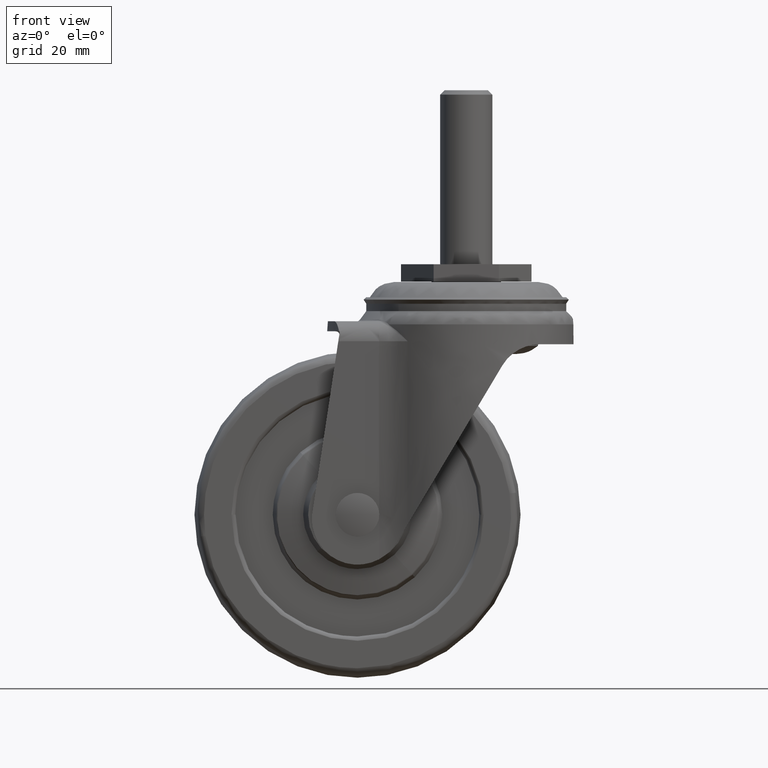
[diagram: clean part render]
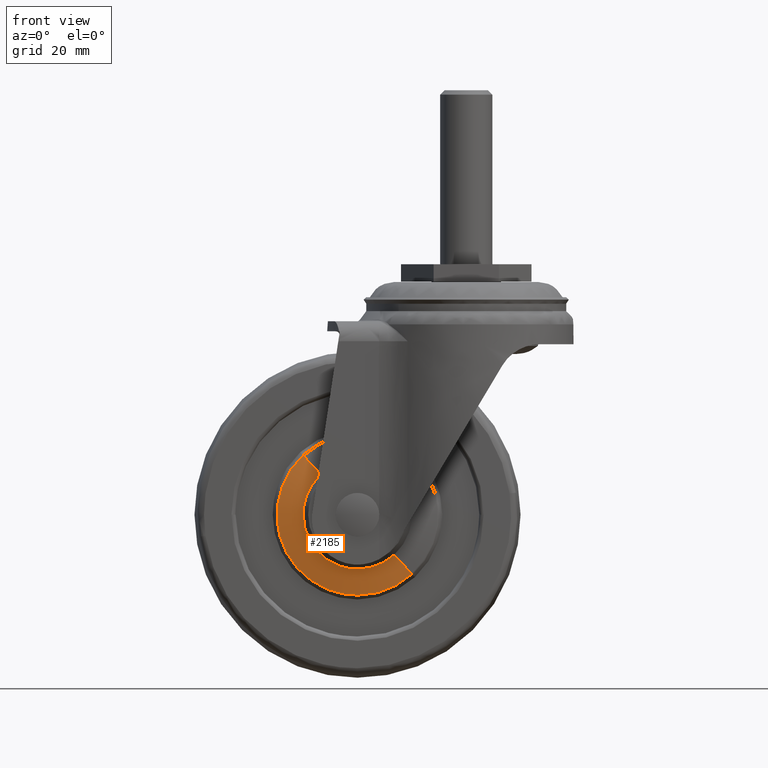
[diagram: same view with one face highlighted and labeled with its STEP entity id]
A machine part, front view. The second image highlights one B-rep face of the part: STEP entity #2185.
In plain terms, the highlighted face is a freeform B-spline surface patch.
Its self-contained STEP definition (entity closure, byte-faithful):
#1955=CARTESIAN_POINT('',(-42.868732202514778,-11.030438807840520,-54.328010344609062));
#1956=VERTEX_POINT('',#1955);
#1957=CARTESIAN_POINT('',(-25.0,-11.030438812514880,-68.009465045403132));
#1958=VERTEX_POINT('',#1957);
#1959=CARTESIAN_POINT('',(-42.868732202514778,-11.030438807840520,-54.328010344609062));
#1960=CARTESIAN_POINT('',(-42.507510024087068,-11.030438808069039,-55.666024877607782));
#1961=CARTESIAN_POINT('',(-41.668617575453261,-11.030438808475370,-57.788371726505233));
#1962=CARTESIAN_POINT('',(-40.158929473386358,-11.030438809028400,-60.196281070709730));
#1963=CARTESIAN_POINT('',(-38.696480906272363,-11.030438809499151,-62.014387499140987));
#1964=CARTESIAN_POINT('',(-37.028658033507909,-11.030438809980829,-63.651102813883938));
#1965=CARTESIAN_POINT('',(-34.737324509408090,-11.030438810571059,-65.332440177792066));
#1966=CARTESIAN_POINT('',(-31.869191783227091,-11.030438811230191,-66.806780900609454));
#1967=CARTESIAN_POINT('',(-28.527710004296441,-11.030438811905240,-67.788896892018343));
#1968=CARTESIAN_POINT('',(-26.133907949005039,-11.030438812327880,-68.009565624539803));
#1969=CARTESIAN_POINT('',(-25.0,-11.030438812514880,-68.009465045403132));
#1970=B_SPLINE_CURVE_WITH_KNOTS('',3,(#1959,#1960,#1961,#1962,#1963,#1964,#1965,#1966,#1967,#1968,#1969),.UNSPECIFIED.,.F.,.U.,(4,1,1,1,1,1,1,1,4),(0.000000028460914,4.157685503882799,6.803500332962699,8.504390645178194,11.150211754677169,13.795952532640170,17.008746910526810,20.788487193201501,24.190218718150049),.UNSPECIFIED.);
#1971=EDGE_CURVE('',#1956,#1958,#1970,.T.);
#1992=CARTESIAN_POINT('',(-12.495162531515820,-11.030438811110169,-63.146599712562420));
#1993=VERTEX_POINT('',#1992);
#2007=CARTESIAN_POINT('',(-25.0,-11.030438812514880,-68.009465045403132));
#2008=CARTESIAN_POINT('',(-24.177649855715440,-11.030438812462871,-68.009487055005792));
#2009=CARTESIAN_POINT('',(-22.389926590505102,-11.030438812334770,-67.890158153775346));
#2010=CARTESIAN_POINT('',(-19.654867079063269,-11.030438812087700,-67.302939154691970));
#2011=CARTESIAN_POINT('',(-17.113964810447928,-11.030438811802240,-66.314756581135825));
#2012=CARTESIAN_POINT('',(-14.679419370422790,-11.030438811475170,-64.943808632406856));
#2013=CARTESIAN_POINT('',(-13.259582922609070,-11.030438811246979,-63.847161141098468));
#2014=CARTESIAN_POINT('',(-12.495162531515820,-11.030438811110169,-63.146599712562420));
#2015=B_SPLINE_CURVE_WITH_KNOTS('',3,(#2007,#2008,#2009,#2010,#2011,#2012,#2013,#2014),.UNSPECIFIED.,.F.,.U.,(4,1,1,1,1,4),(0.000000018965693,2.467055044514989,5.363181892316606,8.366535918297993,10.619079116218090,13.729717791646300),.UNSPECIFIED.);
#2016=EDGE_CURVE('',#1958,#1993,#2015,.T.);
#2050=CARTESIAN_POINT('',(-37.504837468484183,-11.030438811110161,-35.853328844871847));
#2051=VERTEX_POINT('',#2050);
#2052=CARTESIAN_POINT('',(-37.504837468484183,-11.030438811110161,-35.853328844871847));
#2053=CARTESIAN_POINT('',(-38.437148672456381,-11.030438810897410,-36.707370602974173));
#2054=CARTESIAN_POINT('',(-39.914476052239003,-11.030438810513560,-38.370104768782042));
#2055=CARTESIAN_POINT('',(-41.591607477918807,-11.030438809947441,-41.122432657984348));
#2056=CARTESIAN_POINT('',(-42.654769342351841,-11.030438809460740,-43.714133258713638));
#2057=CARTESIAN_POINT('',(-43.382518466071893,-11.030438808946281,-46.689067067982052));
#2058=CARTESIAN_POINT('',(-43.642482986499260,-11.030438808390100,-50.226188023890302));
#2059=CARTESIAN_POINT('',(-43.253857679443939,-11.030438808020140,-52.904069663202613));
#2060=CARTESIAN_POINT('',(-42.868732202514778,-11.030438807840520,-54.328010344609062));
#2061=B_SPLINE_CURVE_WITH_KNOTS('',3,(#2052,#2053,#2054,#2055,#2056,#2057,#2058,#2059,#2060),.UNSPECIFIED.,.F.,.U.,(4,1,1,1,1,1,4),(0.000000043204018,3.793033100342864,6.637829930993298,9.640680711140321,12.169344026652320,15.804349371585641,20.229560875232860),.UNSPECIFIED.);
#2062=EDGE_CURVE('',#2051,#1956,#2061,.T.);
#2100=CARTESIAN_POINT('',(-16.656621401892959,-12.536739029803989,-58.605164270470780));
#2101=CARTESIAN_POINT('',(-25.761821393646603,-12.536739029803988,-66.948542868577832));
#2102=CARTESIAN_POINT('',(-34.105199991753643,-12.536739029803989,-57.843342876824181));
#2103=CARTESIAN_POINT('',(-42.448578589860688,-12.536739029803988,-48.738142885070538));
#2104=CARTESIAN_POINT('',(-33.343378598107037,-12.536739029803989,-40.394764286963493));
#2105=CARTESIAN_POINT('',(-12.391126049242731,-10.992781302291430,-63.260135610089463));
#2106=CARTESIAN_POINT('',(-26.151297380615052,-10.992781302291432,-75.869009560846735));
#2107=CARTESIAN_POINT('',(-38.760171331372320,-10.992781302291430,-62.108838229474422));
#2108=CARTESIAN_POINT('',(-51.369045282129591,-10.992781302291432,-48.348666898102096));
#2109=CARTESIAN_POINT('',(-37.608873950757271,-10.992781302291430,-35.739792947344817));
#2117=(BOUNDED_SURFACE()B_SPLINE_SURFACE(2,1,((#2100,#2105),(#2101,#2106),(#2102,#2107),(#2103,#2108),(#2104,#2109)),.UNSPECIFIED.,.F.,.F.,.U.)B_SPLINE_SURFACE_WITH_KNOTS((3,2,3),(2,2),(0.0,30.922689747615181,61.845379495230361),(0.0,6.499770322134299),.UNSPECIFIED.)GEOMETRIC_REPRESENTATION_ITEM()RATIONAL_B_SPLINE_SURFACE(((1.0,1.0),(0.707106781186548,0.707106781186548),(1.0,1.0),(0.707106781186548,0.707106781186548),(1.0,1.0)))REPRESENTATION_ITEM('')SURFACE());
#2118=CARTESIAN_POINT('',(-25.0,-12.500000000000000,-61.999964278717130));
#2119=VERTEX_POINT('',#2118);
#2120=CARTESIAN_POINT('',(-16.555123134284710,-12.500000128189900,-58.715930192758087));
#2121=VERTEX_POINT('',#2120);
#2122=CARTESIAN_POINT('',(-25.0,-12.500000000000000,-61.999964278717130));
#2123=CARTESIAN_POINT('',(-24.082443148946631,-12.500000013928149,-62.000118774164150));
#2124=CARTESIAN_POINT('',(-22.199096100360801,-12.500000042516630,-61.791708218625402));
#2125=CARTESIAN_POINT('',(-20.041949506968692,-12.500000075261241,-61.038190759414249));
#2126=CARTESIAN_POINT('',(-18.131162153287629,-12.500000104266290,-59.998126308109207));
#2127=CARTESIAN_POINT('',(-17.160327325796001,-12.500000119003129,-59.270664394216787));
#2128=CARTESIAN_POINT('',(-16.555123134284710,-12.500000128189900,-58.715930192758087));
#2129=B_SPLINE_CURVE_WITH_KNOTS('',3,(#2122,#2123,#2124,#2125,#2126,#2127,#2128),.UNSPECIFIED.,.F.,.U.,(4,1,1,1,4),(0.000000018022480,2.752663530440581,5.650187224755151,6.809207587490839,9.272113144571767),.UNSPECIFIED.);
#2130=EDGE_CURVE('',#2119,#2121,#2129,.T.);
#2131=ORIENTED_EDGE('',*,*,#2130,.F.);
#2132=CARTESIAN_POINT('',(-34.215967222125592,-12.499999759436969,-57.944842343073653));
#2133=VERTEX_POINT('',#2132);
#2134=CARTESIAN_POINT('',(-34.215967222125592,-12.499999759436969,-57.944842343073653));
#2135=CARTESIAN_POINT('',(-33.632630309289191,-12.499999774663790,-58.581621184414082));
#2136=CARTESIAN_POINT('',(-32.455049652605872,-12.499999805401851,-59.625504895255027));
#2137=CARTESIAN_POINT('',(-30.733601924398720,-12.499999850336710,-60.651665282310461));
#2138=CARTESIAN_POINT('',(-29.042208197841479,-12.499999894486910,-61.369905644026090));
#2139=CARTESIAN_POINT('',(-27.212892685638710,-12.499999942236940,-61.867415958874894));
#2140=CARTESIAN_POINT('',(-25.755630497828939,-12.499999980276060,-62.000044576511243));
#2141=CARTESIAN_POINT('',(-25.0,-12.500000000000000,-61.999964278717130));
#2142=B_SPLINE_CURVE_WITH_KNOTS('',3,(#2134,#2135,#2136,#2137,#2138,#2139,#2140,#2141),.UNSPECIFIED.,.F.,.U.,(4,1,1,1,1,4),(0.000000010693089,2.590741300334678,4.695725550879777,5.991079633514872,8.096070217090212,10.362965169209760),.UNSPECIFIED.);
#2143=EDGE_CURVE('',#2133,#2119,#2142,.T.);
#2144=ORIENTED_EDGE('',*,*,#2143,.F.);
#2145=CARTESIAN_POINT('',(-37.499999999999808,-12.500000000000000,-49.499966509432383));
#2146=VERTEX_POINT('',#2145);
#2147=CARTESIAN_POINT('',(-37.499999999999808,-12.500000000000000,-49.499966509432383));
#2148=CARTESIAN_POINT('',(-37.500113925658532,-12.499999976613550,-50.320940734894513));
#2149=CARTESIAN_POINT('',(-37.371050095476882,-12.499999939471961,-51.624779135246442));
#2150=CARTESIAN_POINT('',(-36.858614408702287,-12.499999883468281,-53.590770355034387));
#2151=CARTESIAN_POINT('',(-35.971792374359950,-12.499999823685970,-55.689405707100882));
#2152=CARTESIAN_POINT('',(-34.933967876532847,-12.499999781745270,-57.161717867073172));
#2153=CARTESIAN_POINT('',(-34.215967222125592,-12.499999759436969,-57.944842343073653));
#2154=B_SPLINE_CURVE_WITH_KNOTS('',3,(#2147,#2148,#2149,#2150,#2151,#2152,#2153),.UNSPECIFIED.,.F.,.U.,(4,1,1,1,4),(0.000000018042174,2.462905829107894,3.911688920508148,6.084816049866796,9.272111571848418),.UNSPECIFIED.);
#2155=EDGE_CURVE('',#2146,#2133,#2154,.T.);
#2156=ORIENTED_EDGE('',*,*,#2155,.F.);
#2157=CARTESIAN_POINT('',(-33.444876865715202,-12.500000128189910,-40.283998364676293));
#2158=VERTEX_POINT('',#2157);
#2159=CARTESIAN_POINT('',(-33.444876865715202,-12.500000128189910,-40.283998364676293));
#2160=CARTESIAN_POINT('',(-34.002038779675857,-12.500000121089959,-40.794438047695763));
#2161=CARTESIAN_POINT('',(-34.986846781275688,-12.500000106035779,-41.876725434685838));
#2162=CARTESIAN_POINT('',(-36.115190679098120,-12.500000081195630,-43.662562845938659));
#2163=CARTESIAN_POINT('',(-36.834579118085088,-12.500000057629480,-45.356805416853042));
#2164=CARTESIAN_POINT('',(-37.359578389330288,-12.500000030779910,-47.287105376362902));
#2165=CARTESIAN_POINT('',(-37.500132201160177,-12.500000012012100,-48.636378318460181));
#2166=CARTESIAN_POINT('',(-37.499999999999808,-12.500000000000000,-49.499966509432383));
#2167=B_SPLINE_CURVE_WITH_KNOTS('',3,(#2159,#2160,#2161,#2162,#2163,#2164,#2165,#2166),.UNSPECIFIED.,.F.,.U.,(4,1,1,1,1,4),(0.000000010715704,2.266895289921391,4.371886177248134,6.314922188993633,7.772225001055544,10.362966664529839),.UNSPECIFIED.);
#2168=EDGE_CURVE('',#2158,#2146,#2167,.T.);
#2169=ORIENTED_EDGE('',*,*,#2168,.F.);
#2170=CARTESIAN_POINT('',(-33.444876865715202,-12.500000128189910,-40.283998364676293));
#2171=CARTESIAN_POINT('',(-37.504837468484183,-11.030438811110161,-35.853328844871847));
#2172=QUASI_UNIFORM_CURVE('',1,(#2170,#2171),.UNSPECIFIED.,.F.,.U.);
#2173=EDGE_CURVE('',#2158,#2051,#2172,.T.);
#2174=ORIENTED_EDGE('',*,*,#2173,.T.);
#2175=ORIENTED_EDGE('',*,*,#2062,.T.);
#2176=ORIENTED_EDGE('',*,*,#1971,.T.);
#2177=ORIENTED_EDGE('',*,*,#2016,.T.);
#2178=CARTESIAN_POINT('',(-16.555123134284710,-12.500000128189900,-58.715930192758087));
#2179=CARTESIAN_POINT('',(-12.495162531515820,-11.030438811110169,-63.146599712562420));
#2180=QUASI_UNIFORM_CURVE('',1,(#2178,#2179),.UNSPECIFIED.,.F.,.U.);
#2181=EDGE_CURVE('',#2121,#1993,#2180,.T.);
#2182=ORIENTED_EDGE('',*,*,#2181,.F.);
#2183=EDGE_LOOP('',(#2131,#2144,#2156,#2169,#2174,#2175,#2176,#2177,#2182));
#2184=FACE_OUTER_BOUND('',#2183,.T.);
#2185=ADVANCED_FACE('',(#2184),#2117,.T.);